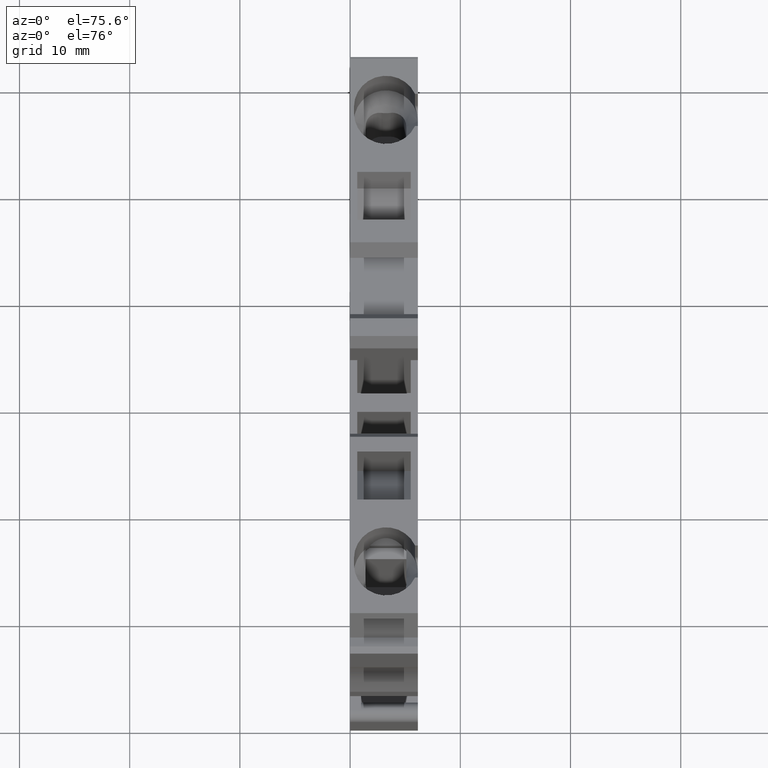
[diagram: clean part render]
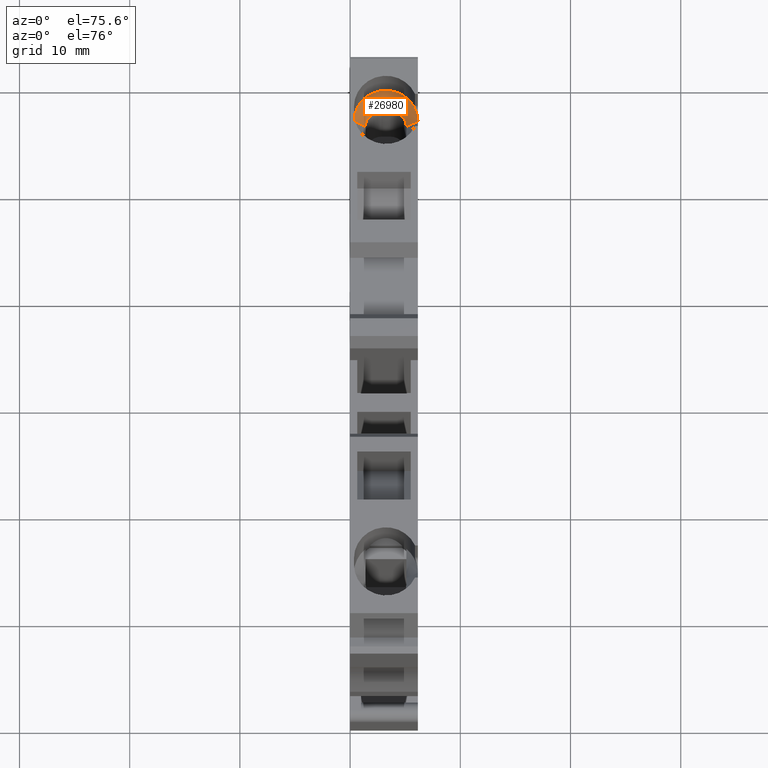
[diagram: same view with one face highlighted and labeled with its STEP entity id]
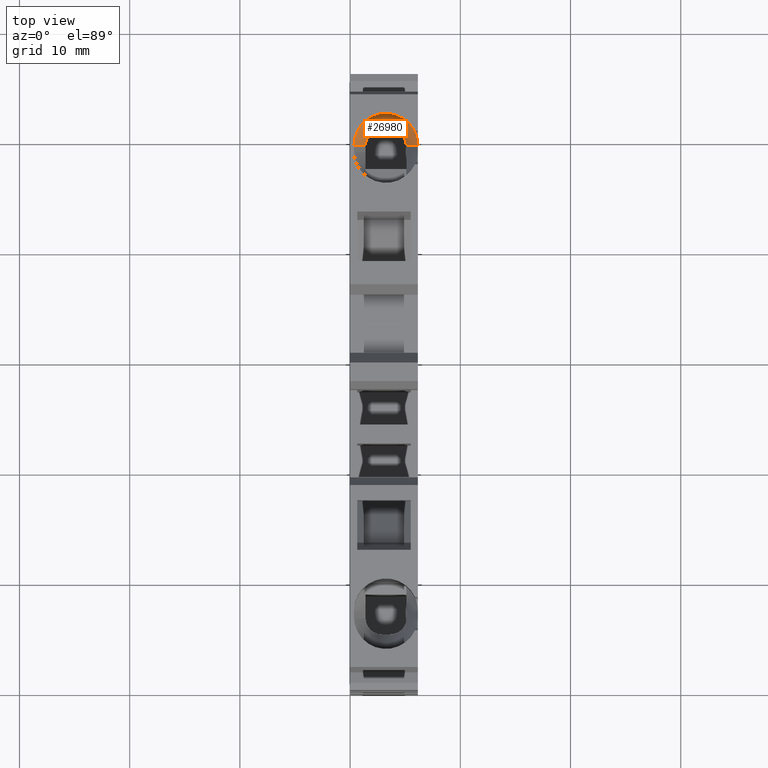
[diagram: same view with one face highlighted and labeled with its STEP entity id]
A machine part, auxiliary view. The second image highlights one B-rep face of the part: STEP entity #26980.
A second angle (top view) of the same face is appended — the face is thin or edge-on in the first view.
In plain terms, the highlighted conical surface has half-angle 28.301 deg.
Its self-contained STEP definition (entity closure, byte-faithful):
#3670=CARTESIAN_POINT('',(2.00000000000009,14.6999999999997,
0.999999999999993));
#3680=VERTEX_POINT('',#3670);
#18590=CARTESIAN_POINT('',(1.99999999999998,14.6999999999997,-4.8));
#18600=VERTEX_POINT('',#18590);
#19020=CARTESIAN_POINT('',(1.99999999999995,16.3023647935281,
-5.66281181189991));
#19030=DIRECTION('',(-9.58780926933289E-15,0.880471099922175,
-0.474099823035017));
#19040=VECTOR('',#19030,7.93675008737977);
#19050=LINE('',#19020,#19040);
#19060=CARTESIAN_POINT('',(1.99999999996675,12.7499999999997,
-3.75000000000001));
#19070=VERTEX_POINT('',#19060);
#19080=EDGE_CURVE('',#19070,#18600,#19050,.T.);
#21510=CARTESIAN_POINT('',(2.00000000002864,12.7499999999997,
-0.0500000000000063));
#21520=VERTEX_POINT('',#21510);
#22700=CARTESIAN_POINT('',(2.00000000000014,-0.713512143819555,
-1.50000000000001));
#22710=DIRECTION('',(-1.08467088769848E-14,1.,2.27765793651141E-16));
#22720=DIRECTION('',(6.1232339957367E-17,2.27765793651142E-16,-1.));
#22730=AXIS2_PLACEMENT_3D('',#22700,#22710,#22720);
#22740=CYLINDRICAL_SURFACE('',#22730,1.45);
#22810=CARTESIAN_POINT('',(3.45000000000001,12.1077273776321,
-1.5000000000034));
#22820=VERTEX_POINT('',#22810);
#22850=CARTESIAN_POINT('',(1.99999999999995,16.3023647935281,-1.9));
#22860=DIRECTION('',(-1.22015116492431E-14,1.,6.99044938237889E-16));
#22870=DIRECTION('',(-6.34690309355202E-31,2.27765793651141E-16,-1.));
#22880=AXIS2_PLACEMENT_3D('',#22850,#22860,#22870);
#22890=CONICAL_SURFACE('',#22880,3.76281181189991,0.493941368919581);
#22900=CARTESIAN_POINT('',(2.00000000002865,12.7499999999997,
-0.0500000000000052));
#22910=CARTESIAN_POINT('',(2.02481769951597,12.7499999999995,
-0.0500000000004957));
#22920=CARTESIAN_POINT('',(2.04951032789613,12.7497454756236,
-0.0506339341036082));
#22930=CARTESIAN_POINT('',(2.07424204463821,12.7492362194119,
-0.0519018960001629));
#22940=CARTESIAN_POINT('',(2.098975903078,12.7487269191,
-0.053169967698683));
#22950=CARTESIAN_POINT('',(2.12372966532286,12.7479617525355,
-0.0550748934031684));
#22960=CARTESIAN_POINT('',(2.14845051455286,12.7469391995908,
-0.0576191748608915));
#22970=CARTESIAN_POINT('',(2.17317124955949,12.7459166513709,
-0.060163444562692));
#22980=CARTESIAN_POINT('',(2.19785852534854,12.7446367204165,
-0.0633470596113549));
#22990=CARTESIAN_POINT('',(2.22245693816037,12.7431001097639,
-0.0671661259363318));
#23000=CARTESIAN_POINT('',(2.24705529041923,12.741563502894,
-0.0709851828600606));
#23010=CARTESIAN_POINT('',(2.27156421510581,12.7397702403226,
-0.0754396273678845));
#23020=CARTESIAN_POINT('',(2.29592771022598,12.7377234008768,
-0.0805188305861918));
#23030=CARTESIAN_POINT('',(2.32029119457509,12.7356765623359,
-0.0855980315589921));
#23040=CARTESIAN_POINT('',(2.34450868726929,12.7333761901517,
-0.0913018773086186));
#23050=CARTESIAN_POINT('',(2.36852544890288,12.7308277294674,
-0.0976131084786494));
#23060=CARTESIAN_POINT('',(2.39254224717612,12.7282792648952,
-0.103924349277011));
#23070=CARTESIAN_POINT('',(2.41635777352585,12.7254827725426,
-0.110842816303093));
#23080=CARTESIAN_POINT('',(2.43992027986979,12.7224459003414,
-0.118345141737897));
#23090=CARTESIAN_POINT('',(2.46348286949623,12.7194090174062,
-0.125847493689931));
#23100=CARTESIAN_POINT('',(2.48679193655657,12.7161318305418,
-0.133933506262654));
#23110=CARTESIAN_POINT('',(2.50980032135932,12.7126238732338,
-0.142574631023158));
#23120=CARTESIAN_POINT('',(2.53281294647955,12.7091152694287,
-0.151217348294944));
#23130=CARTESIAN_POINT('',(2.55550692763489,12.7053789602282,
-0.160407635813938));
#23140=CARTESIAN_POINT('',(2.57789078169014,12.7014171699941,
-0.170134501373338));
#23150=CARTESIAN_POINT('',(2.60029316761507,12.6974520997449,
-0.179869419925065));
#23160=CARTESIAN_POINT('',(2.62246414714325,12.6932467780722,
-0.190177150238162));
#23170=CARTESIAN_POINT('',(2.64436198563141,12.6888058483232,
-0.201039788341025));
#23180=CARTESIAN_POINT('',(2.66625973029472,12.684364937602,
-0.211902379901144));
#23190=CARTESIAN_POINT('',(2.68788394776111,12.6796884743287,
-0.223319733159866));
#23200=CARTESIAN_POINT('',(2.70919257283232,12.6747831435038,
-0.235268449575371));
#23210=CARTESIAN_POINT('',(2.73050114386947,12.6698778251179,
-0.247217135691521));
#23220=CARTESIAN_POINT('',(2.75149373820673,12.6647437117917,
-0.259696995942547));
#23230=CARTESIAN_POINT('',(2.77212958440803,12.65938950102,
-0.272679379753639));
#23240=CARTESIAN_POINT('',(2.79276541146759,12.654035295215,
-0.285661751522322));
#23250=CARTESIAN_POINT('',(2.81304412187193,12.6484610785085,
-0.299146423595828));
#23260=CARTESIAN_POINT('',(2.83292761875914,12.6426774273983,
-0.313100011834083));
#23270=CARTESIAN_POINT('',(2.85281112739805,12.6368937728699,
-0.327053608319302));
#23280=CARTESIAN_POINT('',(2.87229908048565,12.6309007812771,
-0.341475872211775));
#23290=CARTESIAN_POINT('',(2.89135719978435,12.6247106801413,
-0.356329443243116));
#23300=CARTESIAN_POINT('',(2.91041535875406,12.6185205661202,
-0.371183045193362));
#23310=CARTESIAN_POINT('',(2.929043376618,12.6121334476335,
-0.386467688593943));
#23320=CARTESIAN_POINT('',(2.94721171361206,12.6055628840201,
-0.402143010407959));
#23330=CARTESIAN_POINT('',(2.9653801162173,12.5989922966786,
-0.41781838883015));
#23340=CARTESIAN_POINT('',(2.98308857176217,12.5922383740462,
-0.433884171429409));
#23350=CARTESIAN_POINT('',(3.00031298651832,12.5853155940118,
-0.450298171382565));
#23360=CARTESIAN_POINT('',(3.01753962609563,12.5783919197845,
-0.46671429147826));
#23370=CARTESIAN_POINT('',(3.03425850518393,12.5713109852659,
-0.483451452411911));
#23380=CARTESIAN_POINT('',(3.0505919340942,12.5640217136257,
-0.500621899371317));
#23390=CARTESIAN_POINT('',(3.06691690280053,12.5567362175995,
-0.51778345257767));
#23400=CARTESIAN_POINT('',(3.08281276380228,12.5492600768723,
-0.535336363468668));
#23410=CARTESIAN_POINT('',(3.09825582119119,12.5416021556787,
-0.553250745329215));
#23420=CARTESIAN_POINT('',(3.11369883876544,12.5339442542285,
-0.57116508100363));
#23430=CARTESIAN_POINT('',(3.12868886403686,12.5261046450594,
-0.589440704236549));
#23440=CARTESIAN_POINT('',(3.14320390252078,12.5180937180431,
-0.608044374836183));
#23450=CARTESIAN_POINT('',(3.15771891972596,12.5100828027706,
-0.626648018163242));
#23460=CARTESIAN_POINT('',(3.17175877506739,12.5019006516735,
-0.645579505091188));
#23470=CARTESIAN_POINT('',(3.18530402903718,12.4935590271763,
-0.664802802478138));
#23480=CARTESIAN_POINT('',(3.19884927714799,12.4852174062873,
-0.684026091550088));
#23490=CARTESIAN_POINT('',(3.21189976689936,12.4767164005718,
-0.703540974184192));
#23500=CARTESIAN_POINT('',(3.22443926713702,12.4680689490909,
-0.723309275777637));
#23510=CARTESIAN_POINT('',(3.23697877426407,12.4594214928589,
-0.743077588232085));
#23520=CARTESIAN_POINT('',(3.24900715589099,12.4506276835906,
-0.763099095960906));
#23530=CARTESIAN_POINT('',(3.26051185657749,12.4417014018795,
-0.783334206601425));
#23540=CARTESIAN_POINT('',(3.27201657467509,12.4327751066595,
-0.803569347865578));
#23550=CARTESIAN_POINT('',(3.28299749865482,12.4237164337712,
-0.824017867139882));
#23560=CARTESIAN_POINT('',(3.29344604369961,12.414539930791,
-0.844639540376582));
#23570=CARTESIAN_POINT('',(3.30389461483246,12.4053634048988,
-0.865261265101719));
#23580=CARTESIAN_POINT('',(3.31381071772707,12.3960691438366,
-0.88605592264771));
#23590=CARTESIAN_POINT('',(3.32318987081928,12.3866720446906,
-0.906983502960286));
#23600=CARTESIAN_POINT('',(3.33257251038656,12.3772714523984,
-0.927918862598582));
#23610=CARTESIAN_POINT('',(3.34140038264785,12.3677890298074,
-0.948940852025808));
#23620=CARTESIAN_POINT('',(3.34974182337114,12.3581574584519,
-0.970191534379873));
#23630=CARTESIAN_POINT('',(3.36641967113318,12.3389001279615,
-1.01268007525643));
#23640=CARTESIAN_POINT('',(3.38107425675759,12.3191186011782,
-1.05592106408942));
#23650=CARTESIAN_POINT('',(3.39364216170103,12.2988948046765,
-1.09967322706603));
#23660=CARTESIAN_POINT('',(3.40620995223822,12.2786711922729,
-1.1434249917646));
#23670=CARTESIAN_POINT('',(3.41668938139543,12.2580073416744,
-1.18768320733248));
#23680=CARTESIAN_POINT('',(3.42505313996792,12.2370002524429,
-1.23218747552861));
#23690=CARTESIAN_POINT('',(3.43341689953169,12.2159931607217,
-1.27669174899943));
#23700=CARTESIAN_POINT('',(3.43966408062129,12.1946450291721,
-1.32143716849244));
#23710=CARTESIAN_POINT('',(3.44380987180867,12.1730624676995,
-1.36616034195222));
#23720=CARTESIAN_POINT('',(3.44795570046333,12.151479711176,
-1.41088391959447));
#23730=CARTESIAN_POINT('',(3.45000000000011,12.1296647289174,
-1.45558054967612));
#23740=CARTESIAN_POINT('',(3.45,12.1077273776321,-1.50000000000339));
#23750=B_SPLINE_CURVE_WITH_KNOTS('',3,(#22900,#22910,#22920,#22930,
#22940,#22950,#22960,#22970,#22980,#22990,#23000,#23010,#23020,#23030,
#23040,#23050,#23060,#23070,#23080,#23090,#23100,#23110,#23120,#23130,
#23140,#23150,#23160,#23170,#23180,#23190,#23200,#23210,#23220,#23230,
#23240,#23250,#23260,#23270,#23280,#23290,#23300,#23310,#23320,#23330,
#23340,#23350,#23360,#23370,#23380,#23390,#23400,#23410,#23420,#23430,
#23440,#23450,#23460,#23470,#23480,#23490,#23500,#23510,#23520,#23530,
#23540,#23550,#23560,#23570,#23580,#23590,#23600,#23610,#23620,#23630,
#23640,#23650,#23660,#23670,#23680,#23690,#23700,#23710,#23720,#23730,
#23740),.UNSPECIFIED.,.F.,.F.,(4,3,3,3,3,3,3,3,3,3,3,3,3,3,3,3,3,3,3,3,3
,3,3,3,3,3,3,3,4),(0.,0.0742797567491118,0.148753058538435,
0.223480957844801,0.298358094070022,0.373268801691338,0.448093200399373,
0.522713068918829,0.59702841475501,0.67141867514584,0.746068160799559,
0.820893960798135,0.895799184590571,0.970678059570612,1.04542064412,
1.1199174960628,1.1941805544612,1.2686479034487,1.34332328060577,
1.41813615157346,1.49300517217033,1.56784163543499,1.64255270294734,
1.71704460049217,1.79130271909151,1.94036423162941,2.09000298553394,
2.23967669771763,2.38878420962375),.UNSPECIFIED.);
#23760=SURFACE_CURVE('',#23750,(#22740,#22890),.CURVE_3D.);
#23770=EDGE_CURVE('',#21520,#22820,#23760,.T.);
#23890=CARTESIAN_POINT('',(3.45000000000002,11.4000000000007,-2.3));
#23900=DIRECTION('',(1.,1.09079412169422E-14,1.83369022792089E-30));
#23910=DIRECTION('',(1.71531043748488E-32,1.66533453693773E-16,-1.));
#23920=AXIS2_PLACEMENT_3D('',#23890,#23900,#23910);
#23930=PLANE('',#23920);
#23980=CARTESIAN_POINT('',(3.45000000000001,12.1077273776319,-2.3));
#23990=VERTEX_POINT('',#23980);
#24020=CARTESIAN_POINT('',(3.45000000000001,12.1077273776321,
-1.5000000000034));
#24030=CARTESIAN_POINT('',(3.45000000000001,12.0924016498654,
-1.53103202362448));
#24040=CARTESIAN_POINT('',(3.45000000000001,12.0784318890821,
-1.56267254253655));
#24050=CARTESIAN_POINT('',(3.45000000000001,12.0661018547215,
-1.59491865991533));
#24060=CARTESIAN_POINT('',(3.45000000000001,12.0599359316819,
-1.61104408765282));
#24070=CARTESIAN_POINT('',(3.4499999999993,12.0541578124642,
-1.62738099285008));
#24080=CARTESIAN_POINT('',(3.4499999999993,12.04882245051,
-1.64389851624072));
#24090=CARTESIAN_POINT('',(3.4499999999993,12.0434871299109,
-1.66041591160213));
#24100=CARTESIAN_POINT('',(3.44999999999792,12.0385949383415,
-1.67711341056407));
#24110=CARTESIAN_POINT('',(3.44999999999792,12.0341949890271,
-1.69395357734066));
#24120=CARTESIAN_POINT('',(3.44999999999792,12.0297950578484,
-1.71079367470594));
#24130=CARTESIAN_POINT('',(3.44999999999875,12.025887762063,
-1.72777564205812));
#24140=CARTESIAN_POINT('',(3.44999999999875,12.0225129091201,
-1.74485676774699));
#24150=CARTESIAN_POINT('',(3.44999999999875,12.0191380545927,
-1.76193790145512));
#24160=CARTESIAN_POINT('',(3.44999999999979,12.0162959845185,
-1.77911710437445));
#24170=CARTESIAN_POINT('',(3.44999999999979,12.0140142056718,
-1.79634883168175));
#24180=CARTESIAN_POINT('',(3.44999999999979,12.0117324123787,
-1.81358066808639));
#24190=CARTESIAN_POINT('',(3.45000000000001,12.0100111120919,
-1.83086371394169));
#24200=CARTESIAN_POINT('',(3.45000000000001,12.0088637337235,
-1.84815336458082));
#24210=CARTESIAN_POINT('',(3.45000000000001,12.007716339614,
-1.86544325242128));
#24220=CARTESIAN_POINT('',(3.45000000000001,12.0071428571425,
-1.88273835332126));
#24230=CARTESIAN_POINT('',(3.45000000000001,12.0071428571425,
-1.90000000000033));
#24240=CARTESIAN_POINT('',(3.45000000000001,12.0071428571426,
-1.91726164667781));
#24250=CARTESIAN_POINT('',(3.45000000000001,12.007716339614,
-1.9345567475788));
#24260=CARTESIAN_POINT('',(3.45000000000001,12.0088637337235,
-1.95184663541887));
#24270=CARTESIAN_POINT('',(3.45000000000001,12.0100111120906,
-1.96913628603917));
#24280=CARTESIAN_POINT('',(3.4499999999998,12.0117324123762,
-1.98641933189452));
#24290=CARTESIAN_POINT('',(3.4499999999998,12.0140142056717,
-2.00365116831775));
#24300=CARTESIAN_POINT('',(3.4499999999998,12.0162959845184,
-2.020882895625));
#24310=CARTESIAN_POINT('',(3.44999999999875,12.0191380545926,
-2.03806209854429));
#24320=CARTESIAN_POINT('',(3.44999999999875,12.02251290912,
-2.0551432322524));
#24330=CARTESIAN_POINT('',(3.44999999999875,12.0258877620629,
-2.07222435794124));
#24340=CARTESIAN_POINT('',(3.44999999999792,12.0297950578482,
-2.08920632529342));
#24350=CARTESIAN_POINT('',(3.44999999999792,12.034194989027,
-2.10604642265872));
#24360=CARTESIAN_POINT('',(3.44999999999792,12.0385949383413,
-2.12288658943533));
#24370=CARTESIAN_POINT('',(3.4499999999993,12.0434871299107,
-2.13958408839731));
#24380=CARTESIAN_POINT('',(3.4499999999993,12.0488224505099,
-2.15610148375878));
#24390=CARTESIAN_POINT('',(3.4499999999993,12.054157812464,
-2.17261900714948));
#24400=CARTESIAN_POINT('',(3.45000000000001,12.0599359316818,
-2.18895591234682));
#24410=CARTESIAN_POINT('',(3.45000000000001,12.0661018547214,
-2.20508134008442));
#24420=CARTESIAN_POINT('',(3.45000000000001,12.078431889082,
-2.2373274574632));
#24430=CARTESIAN_POINT('',(3.45000000000001,12.0924016498653,
-2.26896797637521));
#24440=CARTESIAN_POINT('',(3.45000000000001,12.1077273776319,
-2.29999999999623));
#24450=B_SPLINE_CURVE_WITH_KNOTS('',3,(#24020,#24030,#24040,#24050,
#24060,#24070,#24080,#24090,#24100,#24110,#24120,#24130,#24140,#24150,
#24160,#24170,#24180,#24190,#24200,#24210,#24220,#24230,#24240,#24250,
#24260,#24270,#24280,#24290,#24300,#24310,#24320,#24330,#24340,#24350,
#24360,#24370,#24380,#24390,#24400,#24410,#24420,#24430,#24440),
.UNSPECIFIED.,.F.,.F.,(4,3,3,3,3,3,3,3,3,3,3,3,3,3,4),(0.,
0.103682531973922,0.155627027262244,0.2077826099782,0.26001706094649,
0.312214508447403,0.364283720126529,0.416168399389393,0.468053078651281,
0.520122290330216,0.572319737831003,0.624554188799283,0.676709771515357,
0.728654266803935,0.832336798777712),.UNSPECIFIED.);
#24460=SURFACE_CURVE('',#24450,(#23930,#22890),.CURVE_3D.);
#24470=EDGE_CURVE('',#22820,#23990,#24460,.T.);
#24610=CARTESIAN_POINT('',(2.00000000000001,11.4000000000007,
-2.30000000000001));
#24620=DIRECTION('',(-1.09079412169422E-14,1.,1.66533453693773E-16));
#24630=DIRECTION('',(6.12323399573677E-17,1.66533453693774E-16,-1.));
#24640=AXIS2_PLACEMENT_3D('',#24610,#24620,#24630);
#24650=CYLINDRICAL_SURFACE('',#24640,1.45);
#24680=CARTESIAN_POINT('',(3.45000000000001,12.1077273776319,
-2.29999999999623));
#24690=CARTESIAN_POINT('',(3.45000000000012,12.1296647289177,
-2.34441945032459));
#24700=CARTESIAN_POINT('',(3.44795570046326,12.1514797111769,
-2.38911608040733));
#24710=CARTESIAN_POINT('',(3.4438098718084,12.1730624677009,
-2.43383965805072));
#24720=CARTESIAN_POINT('',(3.43966408062083,12.1946450291741,
-2.47856283151163));
#24730=CARTESIAN_POINT('',(3.43341689953092,12.2159931607242,
-2.52330825100579));
#24740=CARTESIAN_POINT('',(3.42505313996673,12.237000252446,
-2.56781252447775));
#24750=CARTESIAN_POINT('',(3.41668938139382,12.2580073416779,
-2.61231679267503));
#24760=CARTESIAN_POINT('',(3.40620995223607,12.278671192277,
-2.65657500824405));
#24770=CARTESIAN_POINT('',(3.39364216169823,12.298894804681,
-2.70032677294374));
#24780=CARTESIAN_POINT('',(3.38107425675414,12.3191186011832,
-2.74407893592146));
#24790=CARTESIAN_POINT('',(3.36641967112897,12.3389001279669,
-2.78731992475552));
#24800=CARTESIAN_POINT('',(3.34974182336604,12.3581574584578,
-2.82980846563312));
#24810=CARTESIAN_POINT('',(3.34140038264231,12.3677890298135,
-2.85105914798772));
#24820=CARTESIAN_POINT('',(3.33257251038057,12.3772714524047,
-2.87208113741541));
#24830=CARTESIAN_POINT('',(3.32318987081282,12.386672044697,
-2.89301649705414));
#24840=CARTESIAN_POINT('',(3.31381071771927,12.3960691438442,
-2.91394407736909));
#24850=CARTESIAN_POINT('',(3.30389461482406,12.4053634049065,
-2.93473873491549));
#24860=CARTESIAN_POINT('',(3.29344604369165,12.414539930798,
-2.95536045963915));
#24870=CARTESIAN_POINT('',(3.28299749864534,12.4237164337793,
-2.97598213287822));
#24880=CARTESIAN_POINT('',(3.27201657466496,12.4327751066677,
-2.99643065215289));
#24890=CARTESIAN_POINT('',(3.26051185656785,12.441701401887,
-3.01666579341554));
#24900=CARTESIAN_POINT('',(3.24900715587972,12.4506276835991,
-3.03690090405831));
#24910=CARTESIAN_POINT('',(3.23697877425208,12.4594214928675,
-3.05692241178748));
#24920=CARTESIAN_POINT('',(3.22443926712555,12.4680689490988,
-3.07669072424046));
#24930=CARTESIAN_POINT('',(3.21189976688616,12.4767164005806,
-3.09645902583598));
#24940=CARTESIAN_POINT('',(3.19884927713404,12.4852174062962,
-3.11597390847038));
#24950=CARTESIAN_POINT('',(3.18530402902372,12.4935590271846,
-3.13519719754098));
#24960=CARTESIAN_POINT('',(3.17175877505324,12.5019006516819,
-3.15442049492825));
#24970=CARTESIAN_POINT('',(3.1577189197111,12.5100828027791,
-3.17335198185648));
#24980=CARTESIAN_POINT('',(3.14320390250519,12.5180937180517,
-3.19195562518381));
#24990=CARTESIAN_POINT('',(3.12868886402154,12.5261046450676,
-3.21055929578243));
#25000=CARTESIAN_POINT('',(3.11369883874943,12.5339442542367,
-3.22883491901565));
#25010=CARTESIAN_POINT('',(3.09825582117334,12.5416021556876,
-3.24674925469151));
#25020=CARTESIAN_POINT('',(3.08281276378366,12.5492600768812,
-3.26466363655226));
#25030=CARTESIAN_POINT('',(3.06691690278111,12.5567362176085,
-3.28221654744345));
#25040=CARTESIAN_POINT('',(3.05059193407398,12.5640217136347,
-3.29937810064996));
#25050=CARTESIAN_POINT('',(3.0342585051629,12.571310985275,
-3.31654854760951));
#25060=CARTESIAN_POINT('',(3.01753962607378,12.5783919197936,
-3.33328570854329));
#25070=CARTESIAN_POINT('',(3.00031298649563,12.5853155940209,
-3.34970182863907));
#25080=CARTESIAN_POINT('',(2.98308857174117,12.5922383740544,
-3.36611582858991));
#25090=CARTESIAN_POINT('',(2.96538011619556,12.5989922966868,
-3.38218161118935));
#25100=CARTESIAN_POINT('',(2.94721171358679,12.6055628840293,
-3.39785698961386));
#25110=CARTESIAN_POINT('',(2.92904337659447,12.6121334476417,
-3.41353231142564));
#25120=CARTESIAN_POINT('',(2.91041535872976,12.6185205661285,
-3.42881695482634));
#25130=CARTESIAN_POINT('',(2.89135719975641,12.6247106801503,
-3.44367055677868));
#25140=CARTESIAN_POINT('',(2.87229908045428,12.6309007812869,
-3.45852412781194));
#25150=CARTESIAN_POINT('',(2.85281112736565,12.6368937728796,
-3.47294639170422));
#25160=CARTESIAN_POINT('',(2.83292761872845,12.6426774274073,
-3.48689998818747));
#25170=CARTESIAN_POINT('',(2.81304412184031,12.6484610785174,
-3.50085357642561));
#25180=CARTESIAN_POINT('',(2.79276541143505,12.6540352952238,
-3.51433824849895));
#25190=CARTESIAN_POINT('',(2.77212958437454,12.6593895010287,
-3.52732062026744));
#25200=CARTESIAN_POINT('',(2.75149373817043,12.6647437118007,
-3.54030300407952));
#25210=CARTESIAN_POINT('',(2.73050114383218,12.6698778251268,
-3.55278286433021));
#25220=CARTESIAN_POINT('',(2.70919257279602,12.6747831435122,
-3.564731550445));
#25230=CARTESIAN_POINT('',(2.68788394772387,12.6796884743369,
-3.57668026686022));
#25240=CARTESIAN_POINT('',(2.66625973025655,12.6843649376101,
-3.58809762011863));
#25250=CARTESIAN_POINT('',(2.64436198559231,12.6888058483311,
-3.59896021167839));
#25260=CARTESIAN_POINT('',(2.62246414710322,12.69324677808,
-3.60982284978089));
#25270=CARTESIAN_POINT('',(2.60029316757411,12.6974520997525,
-3.62013058009359));
#25280=CARTESIAN_POINT('',(2.57789078164826,12.7014171700015,
-3.62986549864487));
#25290=CARTESIAN_POINT('',(2.55550692759529,12.7053789602348,
-3.63959236420245));
#25300=CARTESIAN_POINT('',(2.53281294643904,12.7091152694352,
-3.64878265172115));
#25310=CARTESIAN_POINT('',(2.50980032131459,12.7126238732406,
-3.65742536899365));
#25320=CARTESIAN_POINT('',(2.48679193651089,12.7161318305484,
-3.66606649375365));
#25330=CARTESIAN_POINT('',(2.46348286944959,12.7194090174126,
-3.67415250632582));
#25340=CARTESIAN_POINT('',(2.43992027982223,12.7224459003475,
-3.68165485827726));
#25350=CARTESIAN_POINT('',(2.41635777347736,12.7254827725485,
-3.68915718371146));
#25360=CARTESIAN_POINT('',(2.3925422471267,12.7282792649008,
-3.69607565073691));
#25370=CARTESIAN_POINT('',(2.36852544885257,12.7308277294727,
-3.70238689153458));
#25380=CARTESIAN_POINT('',(2.34450868721808,12.7333761901567,
-3.70869812270393));
#25390=CARTESIAN_POINT('',(2.320291194523,12.7356765623407,
-3.71440196845283));
#25400=CARTESIAN_POINT('',(2.29592771017304,12.7377234008812,
-3.71948116942486));
#25410=CARTESIAN_POINT('',(2.27156421505109,12.7397702403268,
-3.72456037264259));
#25420=CARTESIAN_POINT('',(2.24705529036366,12.7415635028978,
-3.72901481714955));
#25430=CARTESIAN_POINT('',(2.22245693810494,12.7431001097674,
-3.73283387407228));
#25440=CARTESIAN_POINT('',(2.19785852529232,12.7446367204197,
-3.73665294039641));
#25450=CARTESIAN_POINT('',(2.1731712495025,12.7459166513737,
-3.73983655544418));
#25460=CARTESIAN_POINT('',(2.14845051449514,12.7469391995932,
-3.74238082514506));
#25470=CARTESIAN_POINT('',(2.12372966526366,12.7479617525376,
-3.74492510660194));
#25480=CARTESIAN_POINT('',(2.0989759030181,12.7487269191016,
-3.74683003230542));
#25490=CARTESIAN_POINT('',(2.07424204457839,12.7492362194131,
-3.74809810400291));
#25500=CARTESIAN_POINT('',(2.04951032783922,12.7497454756244,
-3.7493660658983));
#25510=CARTESIAN_POINT('',(2.0248176994583,12.7499999999999,
-3.75000000000057));
#25520=CARTESIAN_POINT('',(1.99999999996676,12.7499999999997,
-3.75000000000001));
#25530=B_SPLINE_CURVE_WITH_KNOTS('',3,(#24680,#24690,#24700,#24710,
#24720,#24730,#24740,#24750,#24760,#24770,#24780,#24790,#24800,#24810,
#24820,#24830,#24840,#24850,#24860,#24870,#24880,#24890,#24900,#24910,
#24920,#24930,#24940,#24950,#24960,#24970,#24980,#24990,#25000,#25010,
#25020,#25030,#25040,#25050,#25060,#25070,#25080,#25090,#25100,#25110,
#25120,#25130,#25140,#25150,#25160,#25170,#25180,#25190,#25200,#25210,
#25220,#25230,#25240,#25250,#25260,#25270,#25280,#25290,#25300,#25310,
#25320,#25330,#25340,#25350,#25360,#25370,#25380,#25390,#25400,#25410,
#25420,#25430,#25440,#25450,#25460,#25470,#25480,#25490,#25500,#25510,
#25520),.UNSPECIFIED.,.F.,.F.,(4,3,3,3,3,3,3,3,3,3,3,3,3,3,3,3,3,3,3,3,3
,3,3,3,3,3,3,3,4),(0.,0.14910751190981,0.298781224097374,
0.448419978005881,0.59748149054781,0.67173960914908,0.746231506695778,
0.820942574210046,0.895779037476647,0.97064805807548,1.04546092904515,
1.12013630620419,1.19460365519365,1.26886671359401,1.34336356553876,
1.41810615009012,1.49298502507214,1.56789024886654,1.64271604886706,
1.7173655345227,1.79175579491542,1.86607114075362,1.9406910092751,
2.01551540798513,2.09042611560842,2.16530325183557,2.24003115114382,
2.31450445293498,2.38878420968608),.UNSPECIFIED.);
#25540=SURFACE_CURVE('',#25530,(#24650,#22890),.CURVE_3D.);
#25550=EDGE_CURVE('',#23990,#19070,#25540,.T.);
#26580=CARTESIAN_POINT('',(2.00000000000001,16.3023647935281,
1.8628118118999));
#26590=DIRECTION('',(-2.21581166343366E-14,0.880471099922175,
0.474099823035018));
#26600=VECTOR('',#26590,7.93675008737977);
#26610=LINE('',#26580,#26600);
#26620=EDGE_CURVE('',#21520,#3680,#26610,.T.);
#26750=ORIENTED_EDGE('',*,*,#26620,.T.);
#26760=ORIENTED_EDGE('',*,*,#23770,.F.);
#26770=ORIENTED_EDGE('',*,*,#24470,.F.);
#26780=ORIENTED_EDGE('',*,*,#25550,.F.);
#26790=ORIENTED_EDGE('',*,*,#19080,.F.);
#26800=CARTESIAN_POINT('',(1.99999999999998,14.6999999999997,
-1.90000000000001));
#26810=DIRECTION('',(-1.08467088769848E-14,1.,2.27765793651141E-16));
#26820=DIRECTION('',(1.,1.09079412169422E-14,7.65671051465644E-17));
#26830=AXIS2_PLACEMENT_3D('',#26800,#26810,#26820);
#26840=CIRCLE('',#26830,2.9);
#26850=CARTESIAN_POINT('',(2.2,14.6999999999997,0.993095228297888));
#26860=VERTEX_POINT('',#26850);
#26870=EDGE_CURVE('',#26860,#18600,#26840,.T.);
#26880=ORIENTED_EDGE('',*,*,#26870,.T.);
#26890=CARTESIAN_POINT('',(2.00000000000006,14.6999999999997,-1.9));
#26900=DIRECTION('',(-2.50575635921868E-14,1.,2.27765793651141E-16));
#26910=DIRECTION('',(-1.55163788374777E-30,2.27765793651141E-16,-1.));
#26920=AXIS2_PLACEMENT_3D('',#26890,#26900,#26910);
#26930=CIRCLE('',#26920,2.9);
#26940=EDGE_CURVE('',#3680,#26860,#26930,.T.);
#26950=ORIENTED_EDGE('',*,*,#26940,.T.);
#26960=EDGE_LOOP('',(#26950,#26880,#26790,#26780,#26770,#26760,#26750));
#26970=FACE_OUTER_BOUND('',#26960,.T.);
#26980=ADVANCED_FACE('',(#26970),#22890,.F.);